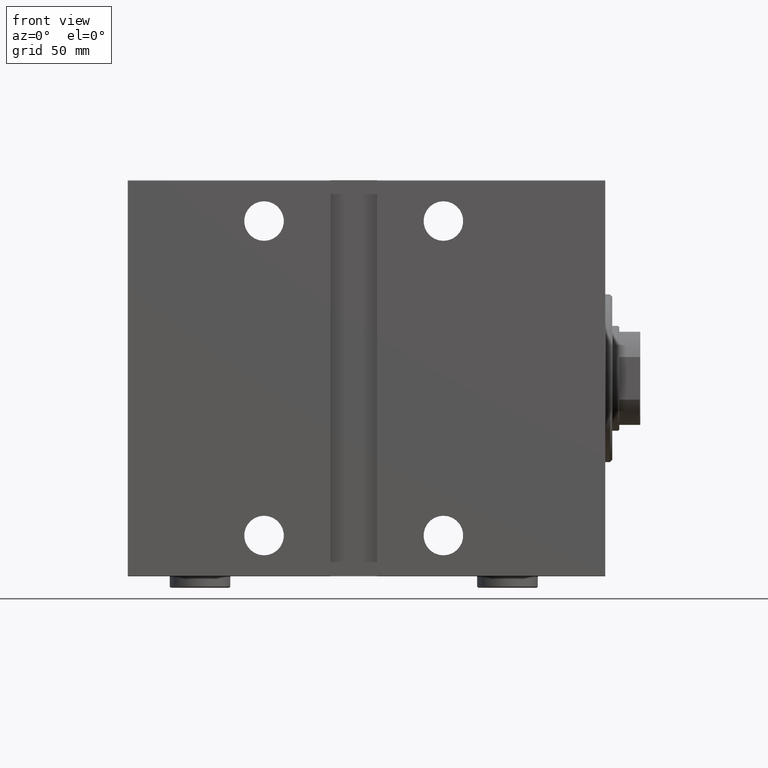
[diagram: clean part render]
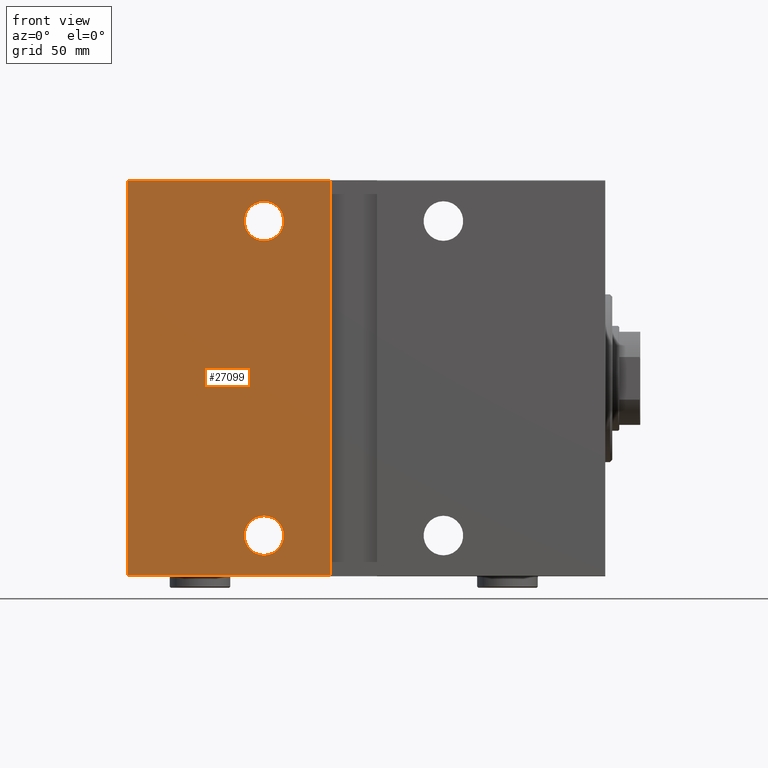
[diagram: same view with one face highlighted and labeled with its STEP entity id]
A machine part, front view. The second image highlights one B-rep face of the part: STEP entity #27099.
In plain terms, the highlighted planar face has unit normal (0, 1, 0).
Its self-contained STEP definition (entity closure, byte-faithful):
#1256 = EDGE_CURVE ( 'NONE', #11737, #33744, #21383, .T. ) ;
#1620 = DIRECTION ( 'NONE',  ( 1.000000000000000000, 0.000000000000000000, 0.000000000000000000 ) ) ;
#2039 = AXIS2_PLACEMENT_3D ( 'NONE', #21164, #27669, #38454 ) ;
#2102 = LINE ( 'NONE', #40014, #7806 ) ;
#2347 = EDGE_CURVE ( 'NONE', #24647, #25189, #2102, .T. ) ;
#4893 = CIRCLE ( 'NONE', #41406, 8.500000000000007105 ) ;
#5277 = VERTEX_POINT ( 'NONE', #35006 ) ;
#6906 = CARTESIAN_POINT ( 'NONE',  ( 146.5000000000000284, 70.00000000000004263, -67.50000000000004263 ) ) ;
#7806 = VECTOR ( 'NONE', #12625, 1000.000000000000000 ) ;
#8313 = CARTESIAN_POINT ( 'NONE',  ( 205.0000000000000000, 70.00000000000002842, -84.70000000000001705 ) ) ;
#8438 = ORIENTED_EDGE ( 'NONE', *, *, #35340, .F. ) ;
#8486 = CIRCLE ( 'NONE', #2039, 8.500000000000007105 ) ;
#8722 = CARTESIAN_POINT ( 'NONE',  ( 146.5000000000000000, 70.00000000000001421, 67.49999999999998579 ) ) ;
#9085 = CARTESIAN_POINT ( 'NONE',  ( 146.5000000000000000, 70.00000000000001421, 58.99999999999997868 ) ) ;
#9224 = CARTESIAN_POINT ( 'NONE',  ( 205.0000000000000000, 70.00000000000002842, 84.69999999999998863 ) ) ;
#10726 = LINE ( 'NONE', #37670, #41653 ) ;
#10888 = DIRECTION ( 'NONE',  ( 0.000000000000000000, -0.000000000000000000, -1.000000000000000000 ) ) ;
#11737 = VERTEX_POINT ( 'NONE', #33161 ) ;
#12625 = DIRECTION ( 'NONE',  ( 0.000000000000000000, 0.000000000000000000, 1.000000000000000000 ) ) ;
#12963 = EDGE_LOOP ( 'NONE', ( #20928, #16079 ) ) ;
#13147 = VECTOR ( 'NONE', #1620, 1000.000000000000000 ) ;
#13741 = CARTESIAN_POINT ( 'NONE',  ( 146.5000000000000000, 70.00000000000001421, 67.49999999999998579 ) ) ;
#14962 = EDGE_CURVE ( 'NONE', #43943, #25189, #18658, .T. ) ;
#15604 = CIRCLE ( 'NONE', #40694, 8.500000000000014211 ) ;
#15687 = ORIENTED_EDGE ( 'NONE', *, *, #31015, .T. ) ;
#16079 = ORIENTED_EDGE ( 'NONE', *, *, #28325, .T. ) ;
#17616 = FACE_OUTER_BOUND ( 'NONE', #41316, .T. ) ;
#18176 = DIRECTION ( 'NONE',  ( -1.000000000000000000, 0.000000000000000000, 0.000000000000000000 ) ) ;
#18658 = LINE ( 'NONE', #9224, #13147 ) ;
#18780 = VERTEX_POINT ( 'NONE', #23371 ) ;
#19241 = DIRECTION ( 'NONE',  ( 0.000000000000000000, 0.000000000000000000, -1.000000000000000000 ) ) ;
#19287 = ORIENTED_EDGE ( 'NONE', *, *, #2347, .F. ) ;
#19360 = CARTESIAN_POINT ( 'NONE',  ( 205.0000000000000000, 70.00000000000002842, -84.70000000000001705 ) ) ;
#19760 = EDGE_LOOP ( 'NONE', ( #39387, #15687 ) ) ;
#20589 = DIRECTION ( 'NONE',  ( 0.000000000000000000, -1.000000000000000000, 0.000000000000000000 ) ) ;
#20928 = ORIENTED_EDGE ( 'NONE', *, *, #27482, .T. ) ;
#20982 = FACE_BOUND ( 'NONE', #19760, .T. ) ;
#21164 = CARTESIAN_POINT ( 'NONE',  ( 146.5000000000000284, 70.00000000000004263, -67.50000000000004263 ) ) ;
#21383 = CIRCLE ( 'NONE', #32858, 8.500000000000014211 ) ;
#23371 = CARTESIAN_POINT ( 'NONE',  ( 146.5000000000000284, 70.00000000000004263, -59.00000000000002842 ) ) ;
#24647 = VERTEX_POINT ( 'NONE', #19360 ) ;
#24810 = FACE_BOUND ( 'NONE', #12963, .T. ) ;
#24857 = CARTESIAN_POINT ( 'NONE',  ( 118.0000000000000142, 70.00000000000004263, -84.70000000000001705 ) ) ;
#24950 = AXIS2_PLACEMENT_3D ( 'NONE', #27946, #38502, #10888 ) ;
#25189 = VERTEX_POINT ( 'NONE', #32306 ) ;
#26384 = VERTEX_POINT ( 'NONE', #24857 ) ;
#27099 = ADVANCED_FACE ( 'NONE', ( #24810, #20982, #17616 ), #31316, .F. ) ;
#27217 = DIRECTION ( 'NONE',  ( 0.000000000000000000, -1.000000000000000000, 0.000000000000000000 ) ) ;
#27482 = EDGE_CURVE ( 'NONE', #18780, #5277, #4893, .T. ) ;
#27570 = ORIENTED_EDGE ( 'NONE', *, *, #33392, .T. ) ;
#27669 = DIRECTION ( 'NONE',  ( 0.000000000000000000, -1.000000000000000000, 0.000000000000000000 ) ) ;
#27946 = CARTESIAN_POINT ( 'NONE',  ( 205.0000000000000000, 70.00000000000002842, -85.00000000000000000 ) ) ;
#28325 = EDGE_CURVE ( 'NONE', #5277, #18780, #8486, .T. ) ;
#28744 = LINE ( 'NONE', #8313, #38633 ) ;
#29513 = ORIENTED_EDGE ( 'NONE', *, *, #14962, .T. ) ;
#31015 = EDGE_CURVE ( 'NONE', #33744, #11737, #15604, .T. ) ;
#31316 = PLANE ( 'NONE',  #24950 ) ;
#32306 = CARTESIAN_POINT ( 'NONE',  ( 205.0000000000000000, 70.00000000000002842, 84.69999999999998863 ) ) ;
#32858 = AXIS2_PLACEMENT_3D ( 'NONE', #8722, #35883, #19241 ) ;
#33161 = CARTESIAN_POINT ( 'NONE',  ( 146.5000000000000000, 70.00000000000001421, 76.00000000000000000 ) ) ;
#33392 = EDGE_CURVE ( 'NONE', #24647, #26384, #28744, .T. ) ;
#33744 = VERTEX_POINT ( 'NONE', #9085 ) ;
#34175 = DIRECTION ( 'NONE',  ( 0.000000000000000000, 0.000000000000000000, -1.000000000000000000 ) ) ;
#34295 = DIRECTION ( 'NONE',  ( 0.000000000000000000, 0.000000000000000000, -1.000000000000000000 ) ) ;
#35006 = CARTESIAN_POINT ( 'NONE',  ( 146.5000000000000284, 70.00000000000004263, -76.00000000000005684 ) ) ;
#35340 = EDGE_CURVE ( 'NONE', #43943, #26384, #10726, .T. ) ;
#35883 = DIRECTION ( 'NONE',  ( 0.000000000000000000, -1.000000000000000000, 0.000000000000000000 ) ) ;
#37670 = CARTESIAN_POINT ( 'NONE',  ( 118.0000000000000142, 70.00000000000004263, -85.00000000000001421 ) ) ;
#38121 = DIRECTION ( 'NONE',  ( -8.163404592832031500E-17, 1.632680918566406300E-16, -1.000000000000000000 ) ) ;
#38454 = DIRECTION ( 'NONE',  ( 0.000000000000000000, 0.000000000000000000, -1.000000000000000000 ) ) ;
#38502 = DIRECTION ( 'NONE',  ( 0.000000000000000000, -1.000000000000000000, 0.000000000000000000 ) ) ;
#38633 = VECTOR ( 'NONE', #18176, 1000.000000000000000 ) ;
#39387 = ORIENTED_EDGE ( 'NONE', *, *, #1256, .T. ) ;
#40014 = CARTESIAN_POINT ( 'NONE',  ( 205.0000000000000000, 70.00000000000002842, -85.00000000000000000 ) ) ;
#40694 = AXIS2_PLACEMENT_3D ( 'NONE', #13741, #27217, #34175 ) ;
#41316 = EDGE_LOOP ( 'NONE', ( #19287, #27570, #8438, #29513 ) ) ;
#41406 = AXIS2_PLACEMENT_3D ( 'NONE', #6906, #20589, #34295 ) ;
#41653 = VECTOR ( 'NONE', #38121, 1000.000000000000000 ) ;
#42689 = CARTESIAN_POINT ( 'NONE',  ( 118.0000000000000284, 70.00000000000001421, 84.70000000000000284 ) ) ;
#43943 = VERTEX_POINT ( 'NONE', #42689 ) ;